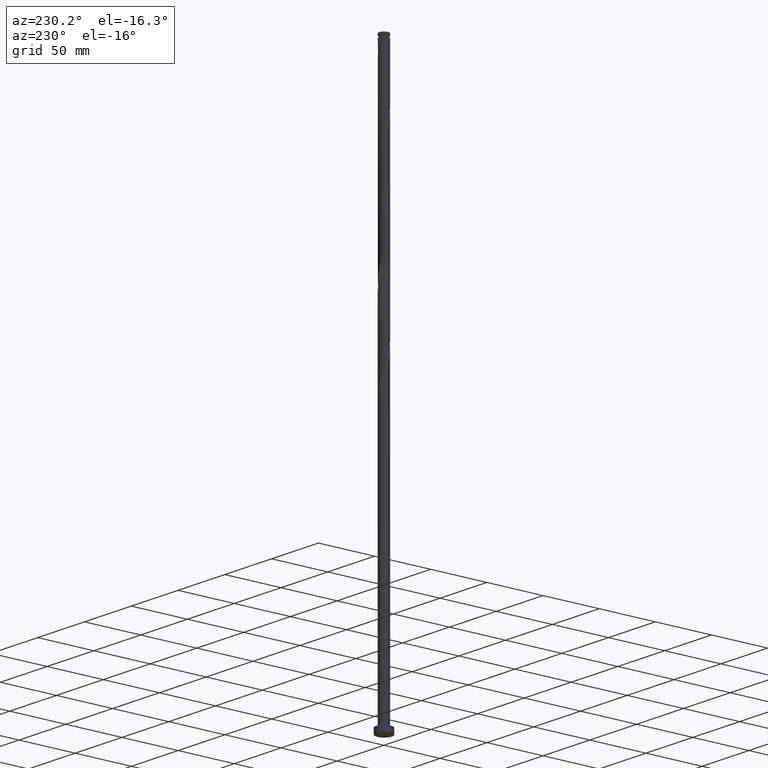
[diagram: clean part render]
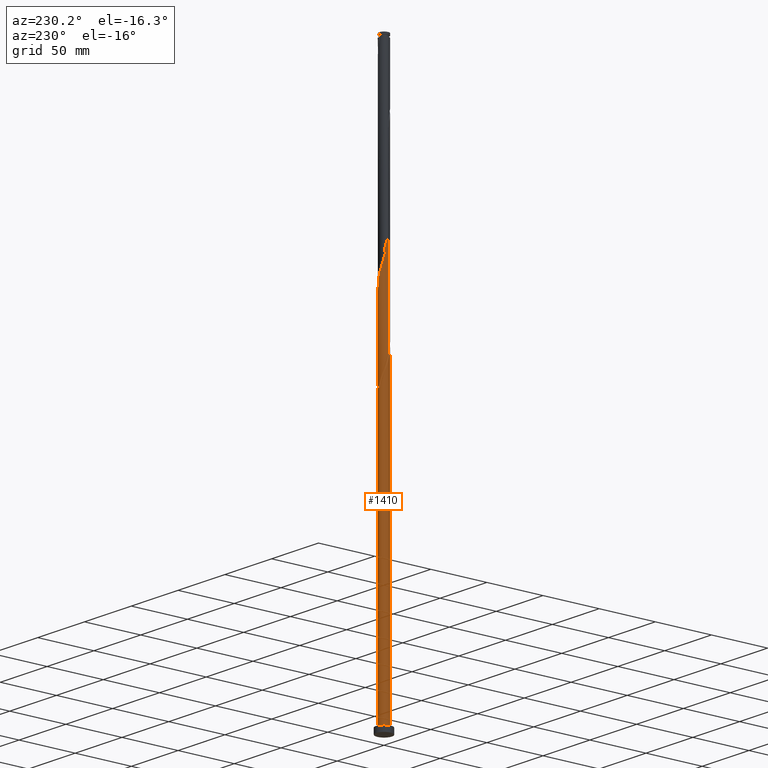
[diagram: same view with one face highlighted and labeled with its STEP entity id]
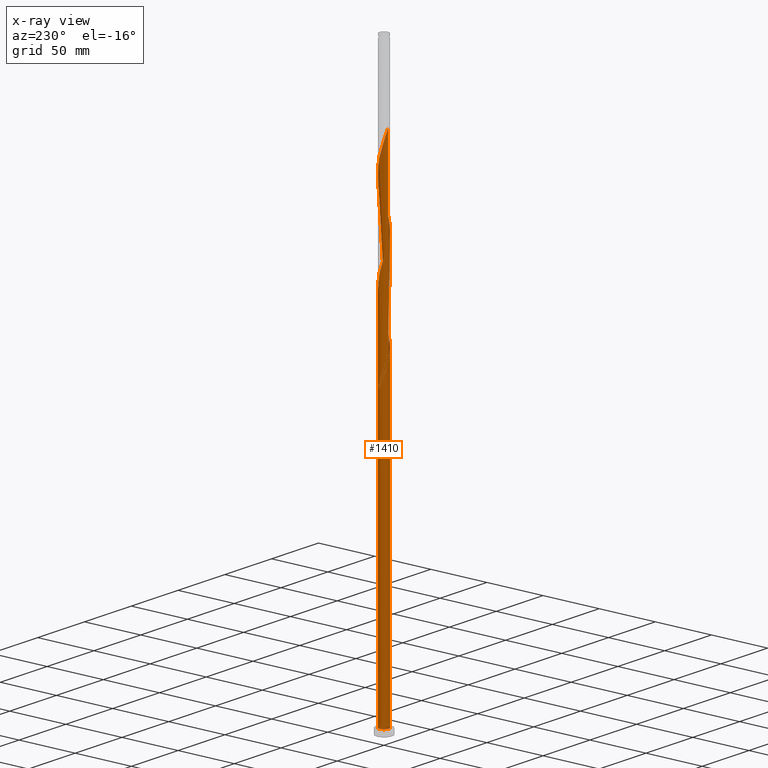
[diagram: x-ray of the same camera — body ghosted, the highlighted face saturated]
A machine part, auxiliary view. The second image highlights one B-rep face of the part: STEP entity #1410.
The next image is the same camera in x-ray: the body ghosted, the highlighted face saturated — about 0% of this face is hidden behind the body in this view.
In plain terms, the highlighted cylindrical surface (bore or boss wall) has radius 4.25 mm, axis along (-0, -0, -1).
Its self-contained STEP definition (entity closure, byte-faithful):
#12 = CARTESIAN_POINT ( 'NONE',  ( -0.4016476537018593418, -4.251634446268169221, 367.6802153902530677 ) ) ;
#18 = CARTESIAN_POINT ( 'NONE',  ( 3.524307826456221981, 2.375237744811974139, 314.2947987235864957 ) ) ;
#21 = FACE_OUTER_BOUND ( 'NONE', #70, .T. ) ;
#29 = DIRECTION ( 'NONE',  ( -0.000000000000000000, -0.000000000000000000, -1.000000000000000000 ) ) ;
#33 = CARTESIAN_POINT ( 'NONE',  ( 3.932938527182274768, -1.610743474736238801, 301.2739653902530108 ) ) ;
#43 = CARTESIAN_POINT ( 'NONE',  ( 0.000000000000000000, 0.000000000000000000, 246.5864653902530961 ) ) ;
#62 = CARTESIAN_POINT ( 'NONE',  ( -2.993203343297932584, 3.017156566317050537, 259.6072987235863820 ) ) ;
#64 = CARTESIAN_POINT ( 'NONE',  ( 3.290367327662785168, 2.722351768502282887, 315.5968820569196964 ) ) ;
#68 = VERTEX_POINT ( 'NONE', #509 ) ;
#69 = CARTESIAN_POINT ( 'NONE',  ( -4.250000000000007105, 2.940191733793575533E-15, 264.7629350789228511 ) ) ;
#70 = EDGE_LOOP ( 'NONE', ( #961, #1570, #735, #215, #564, #1894, #1745, #1295, #1640 ) ) ;
#73 = CARTESIAN_POINT ( 'NONE',  ( 0.8125152467892313712, 4.171608679362805105, 324.7114653902530677 ) ) ;
#78 = CARTESIAN_POINT ( 'NONE',  ( -3.919975136298397000, -1.642039868822441573, 270.0239653902530677 ) ) ;
#80 = CARTESIAN_POINT ( 'NONE',  ( 0.8457393215406328046, 4.164999999999999147, 246.5864653902530961 ) ) ;
#100 = CARTESIAN_POINT ( 'NONE',  ( 2.696039358933085328, 3.311961364131823959, 401.5343820569196396 ) ) ;
#128 = VERTEX_POINT ( 'NONE', #863 ) ;
#129 = CARTESIAN_POINT ( 'NONE',  ( 4.081701947347132098, 1.255956016523219754, 393.7218820569197533 ) ) ;
#143 = CARTESIAN_POINT ( 'NONE',  ( -4.091582912457441878, 1.223382839876598460, 260.9093820569197533 ) ) ;
#151 = CARTESIAN_POINT ( 'NONE',  ( -3.774294141907106326, 1.998104109595880251, 424.9718820569198101 ) ) ;
#155 = CARTESIAN_POINT ( 'NONE',  ( -4.250000000000000888, 0.008468776840608649437, 270.0503088137326699 ) ) ;
#156 = CARTESIAN_POINT ( 'NONE',  ( -3.524307826456223314, -2.375237744811973251, 355.9614653902530108 ) ) ;
#167 = CARTESIAN_POINT ( 'NONE',  ( -2.696039358933086660, -3.311961364131822627, 359.8677153902530677 ) ) ;
#173 = CARTESIAN_POINT ( 'NONE',  ( -3.543127753019465143, 2.347071734264483123, 423.6697987235864957 ) ) ;
#179 = CARTESIAN_POINT ( 'NONE',  ( 4.091582912457441878, -1.223382839876598904, 302.5760487235864389 ) ) ;
#194 = CARTESIAN_POINT ( 'NONE',  ( -4.091582912457441878, 1.223382839876598460, 427.5760487235864389 ) ) ;
#195 = DIRECTION ( 'NONE',  ( 1.000000000000000000, 0.000000000000000000, 0.000000000000000000 ) ) ;
#204 = CARTESIAN_POINT ( 'NONE',  ( 0.000000000000000000, 0.000000000000000000, 5.000000000000000000 ) ) ;
#209 = CARTESIAN_POINT ( 'NONE',  ( -2.696039358933081775, 3.311961364131819519, 258.3052153902530677 ) ) ;
#215 = ORIENTED_EDGE ( 'NONE', *, *, #383, .T. ) ;
#221 = CARTESIAN_POINT ( 'NONE',  ( -3.758248325249661015, -2.028123721121661838, 271.3260487235863820 ) ) ;
#226 = CARTESIAN_POINT ( 'NONE',  ( 0.8457393215406328046, 4.164999999999999147, 246.5864653902530961 ) ) ;
#239 = EDGE_CURVE ( 'NONE', #68, #1917, #631, .T. ) ;
#243 = CARTESIAN_POINT ( 'NONE',  ( 3.758248325249661015, 2.028123721121660950, 312.9927153902530108 ) ) ;
#274 = CARTESIAN_POINT ( 'NONE',  ( 3.311961364131822183, -2.696039358933086660, 380.7010487235863820 ) ) ;
#281 = CARTESIAN_POINT ( 'NONE',  ( -2.347071734264483123, -3.543127753019464699, 361.1697987235864389 ) ) ;
#290 = CARTESIAN_POINT ( 'NONE',  ( -3.311961364131823071, 2.696039358933085772, 255.7010487235864105 ) ) ;
#302 = CARTESIAN_POINT ( 'NONE',  ( -1.998104109595880251, -3.774294141907106770, 362.4718820569198101 ) ) ;
#310 = CARTESIAN_POINT ( 'NONE',  ( 2.028123721121660950, -3.758248325249661015, 292.1593820569198101 ) ) ;
#312 = CARTESIAN_POINT ( 'NONE',  ( -2.993203343297936136, -3.017156566317052757, 358.5656320569196396 ) ) ;
#319 = CARTESIAN_POINT ( 'NONE',  ( -0.8457393215406314724, 4.165000000000003588, 413.2531320569196964 ) ) ;
#327 = CARTESIAN_POINT ( 'NONE',  ( -3.543127753019465143, 2.347071734264483123, 340.3364653902531245 ) ) ;
#347 = CARTESIAN_POINT ( 'NONE',  ( 0.000000000000000000, 0.000000000000000000, 500.0000000000000000 ) ) ;
#352 = CARTESIAN_POINT ( 'NONE',  ( -3.524307826456217541, 2.375237744811971030, 262.2114653902530677 ) ) ;
#353 = CARTESIAN_POINT ( 'NONE',  ( 0.8457393215406318054, -4.165000000000003588, 288.2531320569198101 ) ) ;
#370 = CARTESIAN_POINT ( 'NONE',  ( -0.4016476537018580650, 4.251634446268164780, 250.4927153902530961 ) ) ;
#373 = CARTESIAN_POINT ( 'NONE',  ( 2.993203343297936581, 3.017156566317051869, 316.8989653902530108 ) ) ;
#381 = CARTESIAN_POINT ( 'NONE',  ( -0.4355226265580431910, 4.248298052652877743, 328.6177153902530677 ) ) ;
#383 = EDGE_CURVE ( 'NONE', #524, #1752, #502, .T. ) ;
#394 = CIRCLE ( 'NONE', #1969, 4.250000000000000000 ) ;
#403 = CARTESIAN_POINT ( 'NONE',  ( 3.774294141907105882, -1.998104109595882250, 383.3052153902530677 ) ) ;
#409 = CARTESIAN_POINT ( 'NONE',  ( -1.223382839876598460, -4.091582912457441878, 281.7427153902529540 ) ) ;
#419 = CARTESIAN_POINT ( 'NONE',  ( -3.774294141907106326, 1.998104109595880251, 258.3052153902530108 ) ) ;
#432 = CARTESIAN_POINT ( 'NONE',  ( 2.028123721121660950, -3.758248325249661015, 375.4927153902529540 ) ) ;
#439 = CARTESIAN_POINT ( 'NONE',  ( 0.01693748642809034602, -4.249966249460524814, 368.9822987235863820 ) ) ;
#447 = CARTESIAN_POINT ( 'NONE',  ( 0.000000000000000000, 0.000000000000000000, 5.000000000000000000 ) ) ;
#451 = CARTESIAN_POINT ( 'NONE',  ( -3.919975136298397000, -1.642039868822441573, 353.3572987235862684 ) ) ;
#476 = CARTESIAN_POINT ( 'NONE',  ( -2.375237744811973251, 3.524307826456223314, 335.1281320569197533 ) ) ;
#483 = LINE ( 'NONE', #1083, #588 ) ;
#502 = CIRCLE ( 'NONE', #1613, 4.250000000000000000 ) ;
#509 = CARTESIAN_POINT ( 'NONE',  ( -0.8457393215406312503, 4.165000000000004476, 246.5864653902530961 ) ) ;
#524 = VERTEX_POINT ( 'NONE', #1855 ) ;
#527 = CARTESIAN_POINT ( 'NONE',  ( -1.223382839876596240, 4.091582912457437438, 253.0968820569197817 ) ) ;
#530 = CARTESIAN_POINT ( 'NONE',  ( 2.696039358933085328, 3.311961364131823959, 318.2010487235864389 ) ) ;
#552 = EDGE_CURVE ( 'NONE', #128, #524, #1702, .T. ) ;
#559 = CARTESIAN_POINT ( 'NONE',  ( 2.347071734264483567, 3.543127753019464699, 402.8364653902529540 ) ) ;
#564 = ORIENTED_EDGE ( 'NONE', *, *, #1319, .T. ) ;
#580 = CARTESIAN_POINT ( 'NONE',  ( 0.4355226265580418032, -4.248298052652877743, 370.2843820569197533 ) ) ;
#584 = CARTESIAN_POINT ( 'NONE',  ( 3.543127753019465143, -2.347071734264483567, 382.0031320569197533 ) ) ;
#588 = VECTOR ( 'NONE', #945, 1000.000000000000000 ) ;
#589 = CARTESIAN_POINT ( 'NONE',  ( 0.8125152467892313712, 4.171608679362805105, 408.0447987235863820 ) ) ;
#593 = CARTESIAN_POINT ( 'NONE',  ( -3.932938527182274768, 1.610743474736239023, 342.9406320569197533 ) ) ;
#601 = CARTESIAN_POINT ( 'NONE',  ( -3.932938527182274768, 1.610743474736239023, 259.6072987235863820 ) ) ;
#603 = CARTESIAN_POINT ( 'NONE',  ( -4.249966249460524814, -0.01693748642809151175, 348.1489653902529540 ) ) ;
#609 = CARTESIAN_POINT ( 'NONE',  ( -4.250000000000007105, 2.940191733793575533E-15, 431.4296017455895935 ) ) ;
#618 = DIRECTION ( 'NONE',  ( 0.000000000000000000, 0.000000000000000000, 1.000000000000000000 ) ) ;
#621 = CARTESIAN_POINT ( 'NONE',  ( 3.311961364131822183, -2.696039358933086660, 297.3677153902531245 ) ) ;
#631 = CIRCLE ( 'NONE', #1387, 4.250000000000000000 ) ;
#643 = CARTESIAN_POINT ( 'NONE',  ( 4.171608679362805105, -0.8125152467892311492, 303.8781320569196964 ) ) ;
#671 = CARTESIAN_POINT ( 'NONE',  ( -2.375237744811973251, 3.524307826456223314, 418.4614653902530677 ) ) ;
#675 = CARTESIAN_POINT ( 'NONE',  ( 3.919975136298395668, 1.642039868822442461, 311.6906320569196396 ) ) ;
#681 = CARTESIAN_POINT ( 'NONE',  ( -4.250000000000007994, -0.008468776840593045599, 264.7892886334400941 ) ) ;
#689 = CARTESIAN_POINT ( 'NONE',  ( -4.248298052652877743, -0.4355226265580420253, 266.1177153902530677 ) ) ;
#705 = CARTESIAN_POINT ( 'NONE',  ( 1.642039868822442461, -3.919975136298395668, 374.1906320569196964 ) ) ;
#735 = ORIENTED_EDGE ( 'NONE', *, *, #552, .T. ) ;
#736 = CARTESIAN_POINT ( 'NONE',  ( 3.919975136298395668, 1.642039868822442461, 395.0239653902530108 ) ) ;
#751 = AXIS2_PLACEMENT_3D ( 'NONE', #347, #1197, #1523 ) ;
#762 = CARTESIAN_POINT ( 'NONE',  ( 1.610743474736238801, 3.932938527182274768, 405.4406320569196964 ) ) ;
#774 = CARTESIAN_POINT ( 'NONE',  ( 3.017156566317052757, -2.993203343297936581, 296.0656320569197533 ) ) ;
#781 = CARTESIAN_POINT ( 'NONE',  ( -1.255956016523221752, 4.081701947347132098, 414.5552153902530677 ) ) ;
#789 = CARTESIAN_POINT ( 'NONE',  ( -0.8457393215406314724, 4.165000000000003588, 329.9197987235864957 ) ) ;
#809 = DIRECTION ( 'NONE',  ( 0.000000000000000000, 0.000000000000000000, 1.000000000000000000 ) ) ;
#812 = DIRECTION ( 'NONE',  ( -1.000000000000000000, 0.000000000000000000, 0.000000000000000000 ) ) ;
#822 = CARTESIAN_POINT ( 'NONE',  ( -3.311961364131823071, 2.696039358933085772, 339.0343820569198101 ) ) ;
#830 = CARTESIAN_POINT ( 'NONE',  ( -3.311961364131823071, 2.696039358933085772, 422.3677153902530108 ) ) ;
#838 = CARTESIAN_POINT ( 'NONE',  ( 0.4355226265580428024, 4.248298052652872414, 247.8885487235864389 ) ) ;
#861 = CARTESIAN_POINT ( 'NONE',  ( 4.251634446268169221, -0.4016476537018595083, 388.5135487235864389 ) ) ;
#863 = CARTESIAN_POINT ( 'NONE',  ( -4.250000000000007105, 2.940191733793575533E-15, 264.7629350789228511 ) ) ;
#875 = CARTESIAN_POINT ( 'NONE',  ( 4.091582912457441878, -1.223382839876598904, 385.9093820569198101 ) ) ;
#885 = CARTESIAN_POINT ( 'NONE',  ( 4.248298052652877743, 0.4355226265580434131, 391.1177153902531813 ) ) ;
#892 = CARTESIAN_POINT ( 'NONE',  ( -0.8125152467892291508, -4.171608679362805105, 366.3781320569198101 ) ) ;
#901 = CARTESIAN_POINT ( 'NONE',  ( -3.543127753019465143, 2.347071734264483123, 257.0031320569197533 ) ) ;
#920 = CARTESIAN_POINT ( 'NONE',  ( -3.919975136298390783, 1.642039868822441129, 264.8156320569198101 ) ) ;
#937 = CARTESIAN_POINT ( 'NONE',  ( 4.249966249460523926, 0.01693748642809001989, 306.4822987235864389 ) ) ;
#945 = DIRECTION ( 'NONE',  ( -0.000000000000000000, -0.000000000000000000, -1.000000000000000000 ) ) ;
#958 = CARTESIAN_POINT ( 'NONE',  ( -4.250000000000000000, 0.000000000000000000, 500.0000000000000000 ) ) ;
#961 = ORIENTED_EDGE ( 'NONE', *, *, #1738, .F. ) ;
#972 = CARTESIAN_POINT ( 'NONE',  ( -3.017156566317053201, 2.993203343297935692, 421.0656320569197533 ) ) ;
#975 = CARTESIAN_POINT ( 'NONE',  ( 2.347071734264483567, 3.543127753019464699, 319.5031320569196964 ) ) ;
#991 = CARTESIAN_POINT ( 'NONE',  ( -1.642039868822442017, 3.919975136298395668, 332.5239653902531245 ) ) ;
#1007 = VERTEX_POINT ( 'NONE', #1192 ) ;
#1008 = CARTESIAN_POINT ( 'NONE',  ( 1.255956016523221752, -4.081701947347132098, 372.8885487235863820 ) ) ;
#1011 = CARTESIAN_POINT ( 'NONE',  ( 1.998104109595882250, 3.774294141907105438, 404.1385487235863820 ) ) ;
#1014 = CARTESIAN_POINT ( 'NONE',  ( -0.8125152467892291508, -4.171608679362805105, 283.0447987235864389 ) ) ;
#1029 = CARTESIAN_POINT ( 'NONE',  ( 3.017156566317052757, -2.993203343297936581, 379.3989653902530677 ) ) ;
#1038 = CARTESIAN_POINT ( 'NONE',  ( -3.758248325249661015, -2.028123721121661838, 354.6593820569197533 ) ) ;
#1041 = CARTESIAN_POINT ( 'NONE',  ( 2.722351768502283775, -3.290367327662785168, 378.0968820569196964 ) ) ;
#1048 = CARTESIAN_POINT ( 'NONE',  ( -0.8457393215406312503, 4.165000000000004476, 246.5864653902530961 ) ) ;
#1057 = CARTESIAN_POINT ( 'NONE',  ( -4.250000000000000000, -1.752932060623057619E-15, 270.0766623682499130 ) ) ;
#1065 = CARTESIAN_POINT ( 'NONE',  ( -4.164999999999999147, 0.8457393215406323606, 267.4197987235864957 ) ) ;
#1079 = CARTESIAN_POINT ( 'NONE',  ( -2.722351768502283775, 3.290367327662785168, 336.4302153902531245 ) ) ;
#1083 = CARTESIAN_POINT ( 'NONE',  ( -4.250000000000000000, 0.000000000000000000, 500.0000000000000000 ) ) ;
#1102 = CARTESIAN_POINT ( 'NONE',  ( -2.722351768502283775, 3.290367327662785168, 419.7635487235864957 ) ) ;
#1122 = CARTESIAN_POINT ( 'NONE',  ( 4.248298052652877743, 0.4355226265580434131, 307.7843820569196396 ) ) ;
#1129 = CARTESIAN_POINT ( 'NONE',  ( -1.998104109595877587, 3.774294141907104105, 255.7010487235864389 ) ) ;
#1135 = CARTESIAN_POINT ( 'NONE',  ( -2.347071734264480014, 3.543127753019461146, 257.0031320569198101 ) ) ;
#1137 = CARTESIAN_POINT ( 'NONE',  ( 1.223382839876599126, 4.091582912457440990, 323.4093820569196964 ) ) ;
#1156 = CARTESIAN_POINT ( 'NONE',  ( -2.722351768502283775, 3.290367327662785168, 253.0968820569197817 ) ) ;
#1168 = CARTESIAN_POINT ( 'NONE',  ( 4.171608679362805105, -0.8125152467892311492, 387.2114653902530108 ) ) ;
#1189 = CARTESIAN_POINT ( 'NONE',  ( -2.993203343297936136, -3.017156566317052757, 275.2322987235864389 ) ) ;
#1190 = CARTESIAN_POINT ( 'NONE',  ( 0.4016476537018597859, 4.251634446268169221, 409.3468820569198101 ) ) ;
#1192 = CARTESIAN_POINT ( 'NONE',  ( -4.250000000000000000, -1.752932060623057619E-15, 270.0766623682499130 ) ) ;
#1197 = DIRECTION ( 'NONE',  ( -0.000000000000000000, -0.000000000000000000, -1.000000000000000000 ) ) ;
#1201 = CARTESIAN_POINT ( 'NONE',  ( -4.249966249460519485, 0.01693748642809267055, 270.0239653902530677 ) ) ;
#1203 = CARTESIAN_POINT ( 'NONE',  ( -4.081701947347132098, -1.255956016523221752, 352.0552153902530677 ) ) ;
#1218 = CARTESIAN_POINT ( 'NONE',  ( -2.028123721121662726, 3.758248325249660571, 333.8260487235864389 ) ) ;
#1223 = CARTESIAN_POINT ( 'NONE',  ( 4.251634446268169221, -0.4016476537018595083, 305.1802153902530677 ) ) ;
#1230 = CARTESIAN_POINT ( 'NONE',  ( -3.932938527182274768, 1.610743474736239023, 426.2739653902530677 ) ) ;
#1251 = VECTOR ( 'NONE', #29, 1000.000000000000000 ) ;
#1267 = CARTESIAN_POINT ( 'NONE',  ( -4.249966249460524814, -0.01693748642809151175, 264.8156320569196964 ) ) ;
#1295 = ORIENTED_EDGE ( 'NONE', *, *, #239, .T. ) ;
#1303 = CARTESIAN_POINT ( 'NONE',  ( 4.249966249460523926, 0.01693748642809001989, 389.8156320569196964 ) ) ;
#1314 = CARTESIAN_POINT ( 'NONE',  ( 2.375237744811972362, -3.524307826456223314, 376.7947987235864389 ) ) ;
#1318 = CARTESIAN_POINT ( 'NONE',  ( -2.696039358933086660, -3.311961364131822627, 276.5343820569197533 ) ) ;
#1319 = EDGE_CURVE ( 'NONE', #1752, #524, #394, .T. ) ;
#1325 = CARTESIAN_POINT ( 'NONE',  ( 3.758248325249661015, 2.028123721121660950, 396.3260487235864957 ) ) ;
#1333 = CARTESIAN_POINT ( 'NONE',  ( -4.248298052652877743, -0.4355226265580420253, 349.4510487235863820 ) ) ;
#1343 =( BOUNDED_CURVE ( )  B_SPLINE_CURVE ( 2, ( #69, #681, #1267, #689, #1746, #1897, #78, #221, #1434, #1813, #1189, #1318, #1943, #1634, #1513, #409, #1014, #1637, #1866, #1876, #353, #1391, #1837, #310, #1377, #1527, #774, #621, #1686, #1536, #33, #179, #643, #1223, #937, #1122, #1741, #1700, #675, #243, #18, #64, #373, #530, #975, #1443, #1541, #1137, #73, #1605, #1905, #381, #789, #1383, #991, #1218, #476, #1079, #1691, #822, #327, #1577, #593, #1348, #1826, #1529, #603, #1333, #1817, #1203, #451, #1038, #156, #1677, #312, #167, #281, #302, #1358, #1367, #892, #12, #439, #580, #1803, #1008, #705, #432, #1314, #1041, #1029, #274, #584, #403, #1618, #875, #1168, #861, #1303, #885, #1488, #129, #736, #1325, #1650, #1787, #1454, #100, #559, #1011, #762, #1845, #589, #1190, #1673, #1524, #319, #781, #1726, #1571, #671, #1102, #972, #830, #173, #151, #1230, #194, #1354, #1669, #609 ),
 .UNSPECIFIED., .F., .T. ) 
 B_SPLINE_CURVE_WITH_KNOTS ( ( 3, 2, 2, 2, 2, 2, 2, 2, 2, 2, 2, 2, 2, 2, 2, 2, 2, 2, 2, 2, 2, 2, 2, 2, 2, 2, 2, 2, 2, 2, 2, 2, 2, 2, 2, 2, 2, 2, 2, 2, 2, 2, 2, 2, 2, 2, 2, 2, 2, 2, 2, 2, 2, 2, 2, 2, 2, 2, 2, 2, 2, 2, 2, 2, 2, 3 ),
 ( 0.05452869021808687960, 0.05468750000000000000, 0.06250000000000000000, 0.07031250000000000000, 0.07812500000000000000, 0.08593750000000000000, 0.09375000000000000000, 0.1015625000000000000, 0.1093750000000000000, 0.1171875000000000000, 0.1250000000000000000, 0.1328125000000000000, 0.1406250000000000000, 0.1484375000000000000, 0.1562500000000000000, 0.1640625000000000000, 0.1718750000000000000, 0.1796875000000000000, 0.1875000000000000000, 0.1953125000000000000, 0.2031250000000000000, 0.2109375000000000000, 0.2187500000000000000, 0.2265625000000000000, 0.2343750000000000000, 0.2421875000000000000, 0.2500000000000000000, 0.2578125000000000000, 0.2656250000000000000, 0.2734375000000000000, 0.2812500000000000000, 0.2890625000000000000, 0.2968750000000000000, 0.3046875000000000000, 0.3125000000000000000, 0.3203125000000000000, 0.3281250000000000000, 0.3359375000000000000, 0.3437500000000000000, 0.3515625000000000000, 0.3593750000000000000, 0.3671875000000000000, 0.3750000000000000000, 0.3828125000000000000, 0.3906250000000000000, 0.3984375000000000000, 0.4062500000000000000, 0.4140625000000000000, 0.4218750000000000000, 0.4296875000000000000, 0.4375000000000000000, 0.4453125000000000000, 0.4531250000000000000, 0.4609375000000000000, 0.4687500000000000000, 0.4765625000000000000, 0.4843750000000000000, 0.4921875000000000000, 0.5000000000000000000, 0.5078125000000000000, 0.5156250000000000000, 0.5234375000000000000, 0.5312500000000000000, 0.5390625000000000000, 0.5468750000000000000, 0.5545286902180872612 ),
 .UNSPECIFIED. ) 
 CURVE ( )  GEOMETRIC_REPRESENTATION_ITEM ( )  RATIONAL_B_SPLINE_CURVE ( ( 0.9089165573359642147, 0.9090019243628691958, 0.9090909090909612411, 0.9047133878838673482, 0.9090909090909612411, 0.9047133878838673482, 0.9090909090909612411, 0.9047133878838673482, 0.9090909090909612411, 0.9047133878838673482, 0.9090909090909612411, 0.9047133878838673482, 0.9090909090909612411, 0.9047133878838673482, 0.9090909090909612411, 0.9047133878838673482, 0.9090909090909612411, 0.9047133878838673482, 0.9090909090909612411, 0.9047133878838673482, 0.9090909090909612411, 0.9047133878838673482, 0.9090909090909612411, 0.9047133878838673482, 0.9090909090909612411, 0.9047133878838673482, 0.9090909090909612411, 0.9047133878838673482, 0.9090909090909612411, 0.9047133878838673482, 0.9090909090909612411, 0.9047133878838673482, 0.9090909090909612411, 0.9047133878838673482, 0.9090909090909612411, 0.9047133878838673482, 0.9090909090909612411, 0.9047133878838673482, 0.9090909090909612411, 0.9047133878838673482, 0.9090909090909612411, 0.9047133878838673482, 0.9090909090909612411, 0.9047133878838673482, 0.9090909090909612411, 0.9047133878838673482, 0.9090909090909612411, 0.9047133878838673482, 0.9090909090909612411, 0.9047133878838673482, 0.9090909090909612411, 0.9047133878838673482, 0.9090909090909612411, 0.9047133878838673482, 0.9090909090909612411, 0.9047133878838673482, 0.9090909090909612411, 0.9047133878838673482, 0.9090909090909612411, 0.9047133878838673482, 0.9090909090909612411, 0.9047133878838673482, 0.9090909090909612411, 0.9047133878838673482, 0.9090909090909612411, 0.9047133878838673482, 0.9090909090909612411, 0.9047133878838673482, 0.9090909090909612411, 0.9047133878838673482, 0.9090909090909612411, 0.9047133878838673482, 0.9090909090909612411, 0.9047133878838673482, 0.9090909090909612411, 0.9047133878838673482, 0.9090909090909612411, 0.9047133878838673482, 0.9090909090909612411, 0.9047133878838673482, 0.9090909090909612411, 0.9047133878838673482, 0.9090909090909612411, 0.9047133878838673482, 0.9090909090909612411, 0.9047133878838673482, 0.9090909090909612411, 0.9047133878838673482, 0.9090909090909612411, 0.9047133878838673482, 0.9090909090909612411, 0.9047133878838673482, 0.9090909090909612411, 0.9047133878838673482, 0.9090909090909612411, 0.9047133878838673482, 0.9090909090909612411, 0.9047133878838673482, 0.9090909090909612411, 0.9047133878838673482, 0.9090909090909612411, 0.9047133878838673482, 0.9090909090909612411, 0.9047133878838673482, 0.9090909090909612411, 0.9047133878838673482, 0.9090909090909612411, 0.9047133878838673482, 0.9090909090909612411, 0.9047133878838673482, 0.9090909090909612411, 0.9047133878838673482, 0.9090909090909612411, 0.9047133878838673482, 0.9090909090909612411, 0.9047133878838673482, 0.9090909090909612411, 0.9047133878838673482, 0.9090909090909612411, 0.9047133878838673482, 0.9090909090909612411, 0.9047133878838673482, 0.9090909090909612411, 0.9047133878838673482, 0.9090909090909612411, 0.9047133878838673482, 0.9090909090909612411, 0.9047133878838673482, 0.9090909090909612411, 0.9048023726119591714, 0.9089165573359646588 ) ) 
 REPRESENTATION_ITEM ( '' )  );
#1348 = CARTESIAN_POINT ( 'NONE',  ( -4.091582912457441878, 1.223382839876598460, 344.2427153902530677 ) ) ;
#1354 = CARTESIAN_POINT ( 'NONE',  ( -4.171608679362805105, 0.8125152467892289287, 428.8781320569197533 ) ) ;
#1358 = CARTESIAN_POINT ( 'NONE',  ( -1.610743474736238801, -3.932938527182274768, 363.7739653902529540 ) ) ;
#1367 = CARTESIAN_POINT ( 'NONE',  ( -1.223382839876598460, -4.091582912457441878, 365.0760487235864389 ) ) ;
#1371 = EDGE_CURVE ( 'NONE', #128, #1926, #1343, .T. ) ;
#1377 = CARTESIAN_POINT ( 'NONE',  ( 2.375237744811972362, -3.524307826456223314, 293.4614653902531245 ) ) ;
#1383 = CARTESIAN_POINT ( 'NONE',  ( -1.255956016523221752, 4.081701947347132098, 331.2218820569197533 ) ) ;
#1387 = AXIS2_PLACEMENT_3D ( 'NONE', #43, #1554, #812 ) ;
#1391 = CARTESIAN_POINT ( 'NONE',  ( 1.255956016523221752, -4.081701947347132098, 289.5552153902530108 ) ) ;
#1410 = ADVANCED_FACE ( 'NONE', ( #21 ), #1711, .T. ) ;
#1421 = CARTESIAN_POINT ( 'NONE',  ( -4.250000000000007105, 2.940191733793575533E-15, 431.4296017455895935 ) ) ;
#1428 = DIRECTION ( 'NONE',  ( 1.000000000000000000, 0.000000000000000000, 0.000000000000000000 ) ) ;
#1434 = CARTESIAN_POINT ( 'NONE',  ( -3.524307826456223314, -2.375237744811973251, 272.6281320569197533 ) ) ;
#1443 = CARTESIAN_POINT ( 'NONE',  ( 1.998104109595882250, 3.774294141907105438, 320.8052153902530677 ) ) ;
#1454 = CARTESIAN_POINT ( 'NONE',  ( 2.993203343297936581, 3.017156566317051869, 400.2322987235862684 ) ) ;
#1484 = CARTESIAN_POINT ( 'NONE',  ( -1.255956016523221752, 4.081701947347132098, 247.8885487235864105 ) ) ;
#1488 = CARTESIAN_POINT ( 'NONE',  ( 4.165000000000003588, 0.8457393215406316944, 392.4197987235864389 ) ) ;
#1495 =( BOUNDED_CURVE ( )  B_SPLINE_CURVE ( 2, ( #1057, #155, #1201, #1836, #1065, #1675, #920, #1526, #352, #1716, #62, #209, #1135, #1129, #1574, #527, #1739, #370, #1747, #838, #80 ),
 .UNSPECIFIED., .F., .T. ) 
 B_SPLINE_CURVE_WITH_KNOTS ( ( 3, 2, 2, 2, 2, 2, 2, 2, 2, 2, 3 ),
 ( 0.9295286902180871502, 0.9296875000000000000, 0.9375000000000000000, 0.9453125000000000000, 0.9531250000000000000, 0.9609375000000000000, 0.9687500000000000000, 0.9765625000000000000, 0.9843750000000000000, 0.9921875000000000000, 1.000000000000000000 ),
 .UNSPECIFIED. ) 
 CURVE ( )  GEOMETRIC_REPRESENTATION_ITEM ( )  RATIONAL_B_SPLINE_CURVE ( ( 0.9089165573359594408, 0.9090019243628641998, 0.9090909090909560231, 0.9047133878838620191, 0.9090909090909560231, 0.9047133878838620191, 0.9090909090909560231, 0.9047133878838620191, 0.9090909090909560231, 0.9047133878838620191, 0.9090909090909560231, 0.9047133878838620191, 0.9090909090909560231, 0.9047133878838620191, 0.9090909090909560231, 0.9047133878838620191, 0.9090909090909560231, 0.9047133878838620191, 0.9090909090909560231, 0.9047133878838620191, 0.9090909090909560231 ) ) 
 REPRESENTATION_ITEM ( '' )  );
#1513 = CARTESIAN_POINT ( 'NONE',  ( -1.610743474736238801, -3.932938527182274768, 280.4406320569196964 ) ) ;
#1523 = DIRECTION ( 'NONE',  ( -1.000000000000000000, 0.000000000000000000, 0.000000000000000000 ) ) ;
#1524 = CARTESIAN_POINT ( 'NONE',  ( -0.4355226265580431910, 4.248298052652877743, 411.9510487235864389 ) ) ;
#1526 = CARTESIAN_POINT ( 'NONE',  ( -3.758248325249656574, 2.028123721121660950, 263.5135487235864389 ) ) ;
#1527 = CARTESIAN_POINT ( 'NONE',  ( 2.722351768502283775, -3.290367327662785168, 294.7635487235864389 ) ) ;
#1529 = CARTESIAN_POINT ( 'NONE',  ( -4.251634446268170109, 0.4016476537018590642, 346.8468820569196396 ) ) ;
#1536 = CARTESIAN_POINT ( 'NONE',  ( 3.774294141907105882, -1.998104109595882250, 299.9718820569198101 ) ) ;
#1541 = CARTESIAN_POINT ( 'NONE',  ( 1.610743474736238801, 3.932938527182274768, 322.1072987235863820 ) ) ;
#1554 = DIRECTION ( 'NONE',  ( 0.000000000000000000, -0.000000000000000000, -1.000000000000000000 ) ) ;
#1556 = EDGE_CURVE ( 'NONE', #68, #128, #1764, .T. ) ;
#1570 = ORIENTED_EDGE ( 'NONE', *, *, #1371, .F. ) ;
#1571 = CARTESIAN_POINT ( 'NONE',  ( -2.028123721121662726, 3.758248325249660571, 417.1593820569197533 ) ) ;
#1574 = CARTESIAN_POINT ( 'NONE',  ( -1.610743474736236136, 3.932938527182269439, 254.3989653902531529 ) ) ;
#1577 = CARTESIAN_POINT ( 'NONE',  ( -3.774294141907106326, 1.998104109595880251, 341.6385487235863820 ) ) ;
#1605 = CARTESIAN_POINT ( 'NONE',  ( 0.4016476537018597859, 4.251634446268169221, 326.0135487235864389 ) ) ;
#1613 = AXIS2_PLACEMENT_3D ( 'NONE', #447, #618, #195 ) ;
#1618 = CARTESIAN_POINT ( 'NONE',  ( 3.932938527182274768, -1.610743474736238801, 384.6072987235863820 ) ) ;
#1634 = CARTESIAN_POINT ( 'NONE',  ( -1.998104109595880251, -3.774294141907106770, 279.1385487235864389 ) ) ;
#1636 = CARTESIAN_POINT ( 'NONE',  ( -4.250000000000007105, 2.940191733793575533E-15, 264.7629350789228511 ) ) ;
#1637 = CARTESIAN_POINT ( 'NONE',  ( -0.4016476537018593418, -4.251634446268169221, 284.3468820569196964 ) ) ;
#1640 = ORIENTED_EDGE ( 'NONE', *, *, #1773, .F. ) ;
#1646 = CARTESIAN_POINT ( 'NONE',  ( -1.642039868822442017, 3.919975136298395668, 249.1906320569197248 ) ) ;
#1650 = CARTESIAN_POINT ( 'NONE',  ( 3.524307826456221981, 2.375237744811974139, 397.6281320569198101 ) ) ;
#1656 = CARTESIAN_POINT ( 'NONE',  ( -3.017156566317053201, 2.993203343297935692, 254.3989653902530961 ) ) ;
#1669 = CARTESIAN_POINT ( 'NONE',  ( -4.250000000000007105, 0.4100392134481673501, 430.1536216401736397 ) ) ;
#1673 = CARTESIAN_POINT ( 'NONE',  ( -0.01693748642808981172, 4.249966249460523926, 410.6489653902530108 ) ) ;
#1675 = CARTESIAN_POINT ( 'NONE',  ( -4.081701947347124992, 1.255956016523221308, 266.1177153902530677 ) ) ;
#1677 = CARTESIAN_POINT ( 'NONE',  ( -3.290367327662785168, -2.722351768502283775, 357.2635487235864389 ) ) ;
#1686 = CARTESIAN_POINT ( 'NONE',  ( 3.543127753019465143, -2.347071734264483567, 298.6697987235863820 ) ) ;
#1691 = CARTESIAN_POINT ( 'NONE',  ( -3.017156566317053201, 2.993203343297935692, 337.7322987235864957 ) ) ;
#1695 = CARTESIAN_POINT ( 'NONE',  ( 4.250000000000000000, 0.000000000000000000, 5.000000000000000000 ) ) ;
#1700 = CARTESIAN_POINT ( 'NONE',  ( 4.081701947347132098, 1.255956016523219754, 310.3885487235863820 ) ) ;
#1702 = LINE ( 'NONE', #958, #1251 ) ;
#1711 = CYLINDRICAL_SURFACE ( 'NONE', #751, 4.250000000000000000 ) ;
#1716 = CARTESIAN_POINT ( 'NONE',  ( -3.290367327662780728, 2.722351768502281999, 260.9093820569197533 ) ) ;
#1726 = CARTESIAN_POINT ( 'NONE',  ( -1.642039868822442017, 3.919975136298395668, 415.8572987235863820 ) ) ;
#1738 = EDGE_CURVE ( 'NONE', #1926, #1007, #483, .T. ) ;
#1739 = CARTESIAN_POINT ( 'NONE',  ( -0.8125152467892270414, 4.171608679362800665, 251.7947987235864673 ) ) ;
#1741 = CARTESIAN_POINT ( 'NONE',  ( 4.165000000000003588, 0.8457393215406316944, 309.0864653902530108 ) ) ;
#1745 = ORIENTED_EDGE ( 'NONE', *, *, #1556, .F. ) ;
#1746 = CARTESIAN_POINT ( 'NONE',  ( -4.165000000000003588, -0.8457393215406322495, 267.4197987235864389 ) ) ;
#1747 = CARTESIAN_POINT ( 'NONE',  ( 0.01693748642809234442, 4.249966249460520373, 249.1906320569197817 ) ) ;
#1752 = VERTEX_POINT ( 'NONE', #1695 ) ;
#1764 =( BOUNDED_CURVE ( )  B_SPLINE_CURVE ( 2, ( #1048, #1484, #1646, #1791, #1815, #1156, #1656, #290, #901, #419, #601, #143, #1779, #1977, #1636 ),
 .UNSPECIFIED., .F., .T. ) 
 B_SPLINE_CURVE_WITH_KNOTS ( ( 3, 2, 2, 2, 2, 2, 2, 3 ),
 ( 0.000000000000000000, 0.007812500000000000000, 0.01562500000000000000, 0.02343750000000000000, 0.03125000000000000000, 0.03906250000000000000, 0.04687500000000000000, 0.05452869021808687960 ),
 .UNSPECIFIED. ) 
 CURVE ( )  GEOMETRIC_REPRESENTATION_ITEM ( )  RATIONAL_B_SPLINE_CURVE ( ( 0.9090909090909612411, 0.9047133878838673482, 0.9090909090909612411, 0.9047133878838673482, 0.9090909090909612411, 0.9047133878838673482, 0.9090909090909612411, 0.9047133878838673482, 0.9090909090909612411, 0.9047133878838673482, 0.9090909090909612411, 0.9047133878838673482, 0.9090909090909612411, 0.9048023726119593935, 0.9089165573359642147 ) ) 
 REPRESENTATION_ITEM ( '' )  );
#1773 = EDGE_CURVE ( 'NONE', #1007, #1917, #1495, .T. ) ;
#1779 = CARTESIAN_POINT ( 'NONE',  ( -4.171608679362805105, 0.8125152467892289287, 262.2114653902530108 ) ) ;
#1787 = CARTESIAN_POINT ( 'NONE',  ( 3.290367327662785168, 2.722351768502282887, 398.9302153902530108 ) ) ;
#1791 = CARTESIAN_POINT ( 'NONE',  ( -2.028123721121662726, 3.758248325249660571, 250.4927153902531529 ) ) ;
#1803 = CARTESIAN_POINT ( 'NONE',  ( 0.8457393215406318054, -4.165000000000003588, 371.5864653902530108 ) ) ;
#1813 = CARTESIAN_POINT ( 'NONE',  ( -3.290367327662785168, -2.722351768502283775, 273.9302153902530677 ) ) ;
#1815 = CARTESIAN_POINT ( 'NONE',  ( -2.375237744811973251, 3.524307826456223314, 251.7947987235864673 ) ) ;
#1817 = CARTESIAN_POINT ( 'NONE',  ( -4.165000000000003588, -0.8457393215406322495, 350.7531320569196964 ) ) ;
#1826 = CARTESIAN_POINT ( 'NONE',  ( -4.171608679362805105, 0.8125152467892289287, 345.5447987235863820 ) ) ;
#1836 = CARTESIAN_POINT ( 'NONE',  ( -4.248298052652872414, 0.4355226265580426359, 268.7218820569196964 ) ) ;
#1837 = CARTESIAN_POINT ( 'NONE',  ( 1.642039868822442461, -3.919975136298395668, 290.8572987235864389 ) ) ;
#1845 = CARTESIAN_POINT ( 'NONE',  ( 1.223382839876599126, 4.091582912457440990, 406.7427153902530108 ) ) ;
#1855 = CARTESIAN_POINT ( 'NONE',  ( -4.250000000000000000, 0.000000000000000000, 5.000000000000000000 ) ) ;
#1866 = CARTESIAN_POINT ( 'NONE',  ( 0.01693748642809034602, -4.249966249460524814, 285.6489653902530677 ) ) ;
#1876 = CARTESIAN_POINT ( 'NONE',  ( 0.4355226265580418032, -4.248298052652877743, 286.9510487235864389 ) ) ;
#1894 = ORIENTED_EDGE ( 'NONE', *, *, #552, .F. ) ;
#1897 = CARTESIAN_POINT ( 'NONE',  ( -4.081701947347132098, -1.255956016523221752, 268.7218820569197533 ) ) ;
#1905 = CARTESIAN_POINT ( 'NONE',  ( -0.01693748642808981172, 4.249966249460523926, 327.3156320569195827 ) ) ;
#1917 = VERTEX_POINT ( 'NONE', #226 ) ;
#1926 = VERTEX_POINT ( 'NONE', #1421 ) ;
#1943 = CARTESIAN_POINT ( 'NONE',  ( -2.347071734264483123, -3.543127753019464699, 277.8364653902530677 ) ) ;
#1969 = AXIS2_PLACEMENT_3D ( 'NONE', #204, #809, #1428 ) ;
#1977 = CARTESIAN_POINT ( 'NONE',  ( -4.250000000000002665, 0.4100392134481875006, 263.4869549735068404 ) ) ;